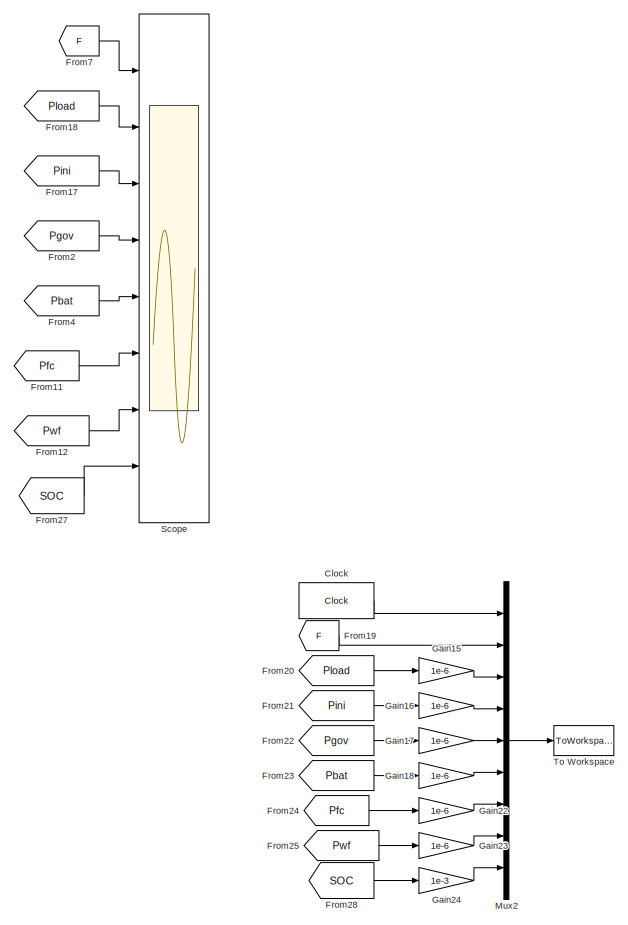
[diagram: root canvas - part 1/3, middle right region]
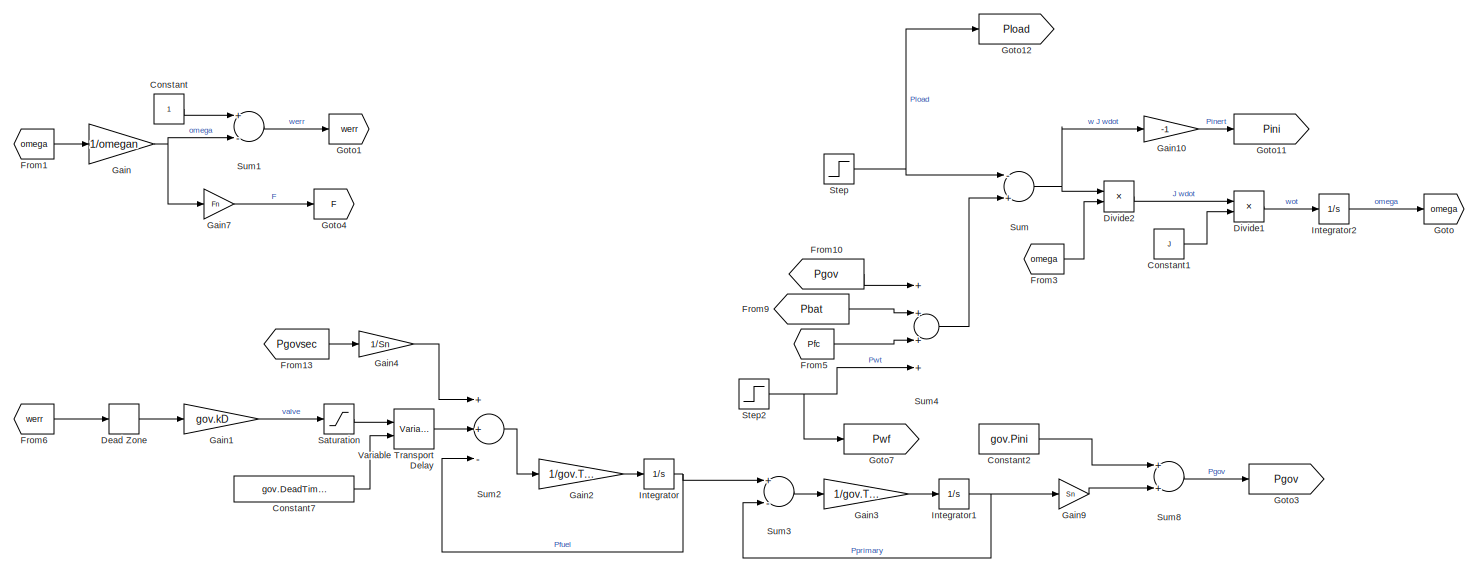
[diagram: root canvas - part 2/3, top left region]
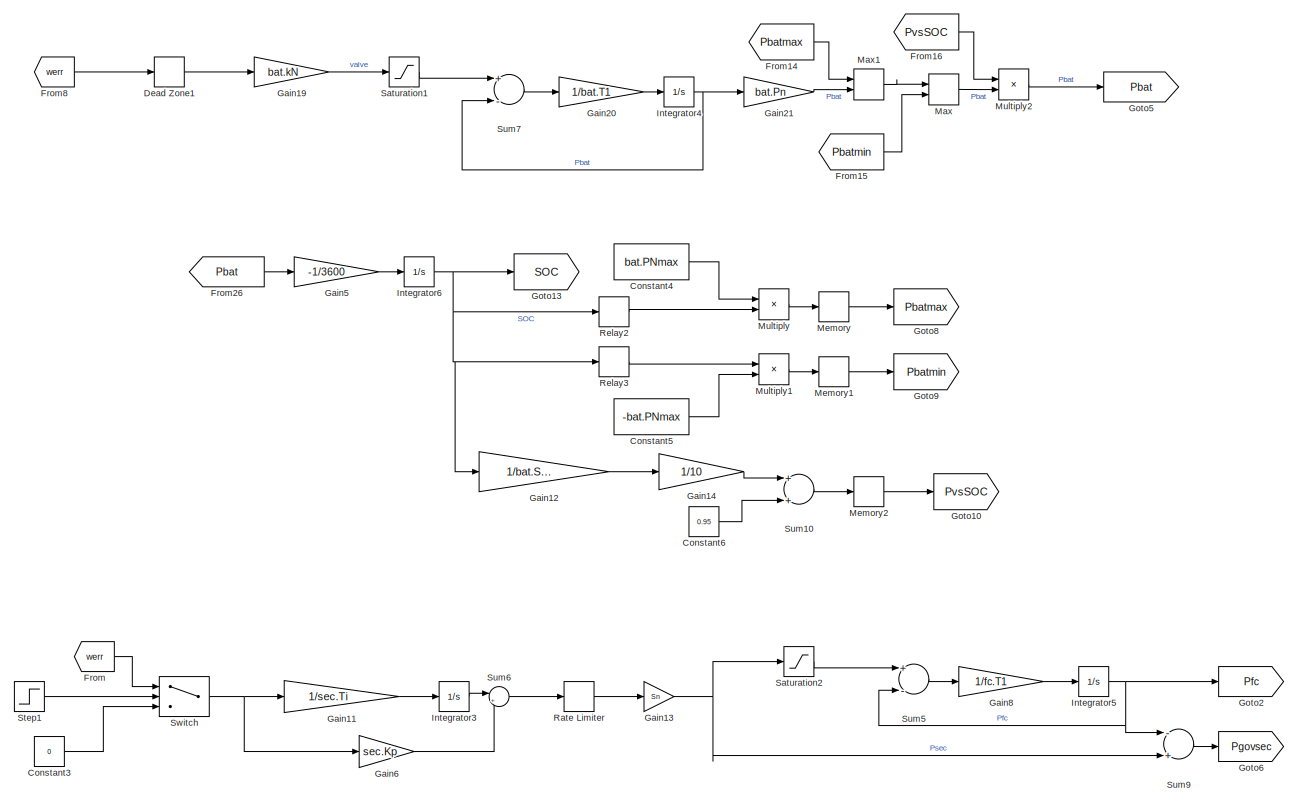
[diagram: root canvas - part 3/3, bottom left region]
MODEL slx_ca74fca343f3
KIND model
CONFIG AbsTol = auto
CONFIG EnableMultiTasking = off
CONFIG FixedStep = Ts
CONFIG MaxStep = 0.1
CONFIG MinStep = auto
CONFIG RelTol = 1e-3
CONFIG SampleTimeConstraint = Unconstrained
CONFIG Solver = FixedStepAuto
CONFIG SolverName = FixedStepAuto
CONFIG StartTime = 0.0
CONFIG StopTime = Ttot
BLOCK [Clock] Clock
  DisplayTime = on
BLOCK [Constant] Constant
BLOCK [Constant] Constant1
  Value = J
BLOCK [Constant] Constant2
  Value = gov.Pini
BLOCK [Constant] Constant3
  Value = 0
BLOCK [Constant] Constant4
  Value = bat.PNmax
BLOCK [Constant] Constant5
  Value = -bat.PNmax
BLOCK [Constant] Constant6
  Value = 0.95
BLOCK [Constant] Constant7
  Value = gov.DeadTimeValve
BLOCK [DeadZone] Dead Zone
  LowerValue = -gov.fD
  UpperValue = gov.fD
BLOCK [DeadZone] Dead Zone1
  LowerValue = -bat.fN
  UpperValue = bat.fN
BLOCK [Product] Divide1
  InputSameDT = off
  Inputs = */
  OutDataTypeStr = Inherit: Inherit via internal rule
  Ports = [2, 1]
  RndMeth = Floor
  SaturateOnIntegerOverflow = off
BLOCK [Product] Divide2
  InputSameDT = off
  Inputs = */
  OutDataTypeStr = Inherit: Inherit via internal rule
  Ports = [2, 1]
  RndMeth = Floor
  SaturateOnIntegerOverflow = off
BLOCK [From] From
  GotoTag = werr
BLOCK [From] From1
  GotoTag = omega
BLOCK [From] From10
  GotoTag = Pgov
BLOCK [From] From11
  GotoTag = Pfc
BLOCK [From] From12
  GotoTag = Pwf
BLOCK [From] From13
  GotoTag = Pgovsec
BLOCK [From] From14
  GotoTag = Pbatmax
BLOCK [From] From15
  GotoTag = Pbatmin
BLOCK [From] From16
  GotoTag = PvsSOC
BLOCK [From] From17
  GotoTag = Pini
BLOCK [From] From18
  GotoTag = Pload
BLOCK [From] From19
  GotoTag = F
BLOCK [From] From2
  GotoTag = Pgov
BLOCK [From] From20
  GotoTag = Pload
BLOCK [From] From21
  GotoTag = Pini
BLOCK [From] From22
  GotoTag = Pgov
BLOCK [From] From23
  GotoTag = Pbat
BLOCK [From] From24
  GotoTag = Pfc
BLOCK [From] From25
  GotoTag = Pwf
BLOCK [From] From26
  GotoTag = Pbat
BLOCK [From] From27
  GotoTag = SOC
BLOCK [From] From28
  GotoTag = SOC
BLOCK [From] From3
  GotoTag = omega
BLOCK [From] From4
  GotoTag = Pbat
BLOCK [From] From5
  GotoTag = Pfc
BLOCK [From] From6
  GotoTag = werr
BLOCK [From] From7
  GotoTag = F
BLOCK [From] From8
  GotoTag = werr
BLOCK [From] From9
  GotoTag = Pbat
BLOCK [Gain] Gain
  Gain = 1/omegan
  OutDataTypeStr = Inherit: Inherit via internal rule
  ParamDataTypeStr = Inherit: Inherit via internal rule
  SaturateOnIntegerOverflow = off
BLOCK [Gain] Gain1
  Gain = gov.kD
  OutDataTypeStr = Inherit: Inherit via internal rule
  ParamDataTypeStr = Inherit: Inherit via internal rule
  SaturateOnIntegerOverflow = off
BLOCK [Gain] Gain10
  Gain = -1
  OutDataTypeStr = Inherit: Inherit via internal rule
  ParamDataTypeStr = Inherit: Inherit via internal rule
  SaturateOnIntegerOverflow = off
BLOCK [Gain] Gain11
  Gain = 1/sec.Ti
  OutDataTypeStr = Inherit: Inherit via internal rule
  ParamDataTypeStr = Inherit: Inherit via internal rule
  SaturateOnIntegerOverflow = off
BLOCK [Gain] Gain12
  Gain = 1/bat.SOCmaxcut
  OutDataTypeStr = Inherit: Inherit via internal rule
  ParamDataTypeStr = Inherit: Inherit via internal rule
  SaturateOnIntegerOverflow = off
BLOCK [Gain] Gain13
  Gain = Sn
  OutDataTypeStr = Inherit: Inherit via internal rule
  ParamDataTypeStr = Inherit: Inherit via internal rule
  SaturateOnIntegerOverflow = off
BLOCK [Gain] Gain14
  Gain = 1/10
  OutDataTypeStr = Inherit: Inherit via internal rule
  ParamDataTypeStr = Inherit: Inherit via internal rule
  SaturateOnIntegerOverflow = off
BLOCK [Gain] Gain15
  Gain = 1e-6
  OutDataTypeStr = Inherit: Inherit via internal rule
  ParamDataTypeStr = Inherit: Inherit via internal rule
  SaturateOnIntegerOverflow = off
BLOCK [Gain] Gain16
  Gain = 1e-6
  OutDataTypeStr = Inherit: Inherit via internal rule
  ParamDataTypeStr = Inherit: Inherit via internal rule
  SaturateOnIntegerOverflow = off
BLOCK [Gain] Gain17
  Gain = 1e-6
  OutDataTypeStr = Inherit: Inherit via internal rule
  ParamDataTypeStr = Inherit: Inherit via internal rule
  SaturateOnIntegerOverflow = off
BLOCK [Gain] Gain18
  Gain = 1e-6
  OutDataTypeStr = Inherit: Inherit via internal rule
  ParamDataTypeStr = Inherit: Inherit via internal rule
  SaturateOnIntegerOverflow = off
BLOCK [Gain] Gain19
  Gain = bat.kN
  OutDataTypeStr = Inherit: Inherit via internal rule
  ParamDataTypeStr = Inherit: Inherit via internal rule
  SaturateOnIntegerOverflow = off
BLOCK [Gain] Gain2
  Gain = 1/gov.Tgt1
  OutDataTypeStr = Inherit: Inherit via internal rule
  ParamDataTypeStr = Inherit: Inherit via internal rule
  SaturateOnIntegerOverflow = off
BLOCK [Gain] Gain20
  Gain = 1/bat.T1
  OutDataTypeStr = Inherit: Inherit via internal rule
  ParamDataTypeStr = Inherit: Inherit via internal rule
  SaturateOnIntegerOverflow = off
BLOCK [Gain] Gain21
  Gain = bat.Pn
  OutDataTypeStr = Inherit: Inherit via internal rule
  ParamDataTypeStr = Inherit: Inherit via internal rule
  SaturateOnIntegerOverflow = off
BLOCK [Gain] Gain22
  Gain = 1e-6
  OutDataTypeStr = Inherit: Inherit via internal rule
  ParamDataTypeStr = Inherit: Inherit via internal rule
  SaturateOnIntegerOverflow = off
BLOCK [Gain] Gain23
  Gain = 1e-6
  OutDataTypeStr = Inherit: Inherit via internal rule
  ParamDataTypeStr = Inherit: Inherit via internal rule
  SaturateOnIntegerOverflow = off
BLOCK [Gain] Gain24
  Gain = 1e-3
  OutDataTypeStr = Inherit: Inherit via internal rule
  ParamDataTypeStr = Inherit: Inherit via internal rule
  SaturateOnIntegerOverflow = off
BLOCK [Gain] Gain3
  Gain = 1/gov.Tgt2
  OutDataTypeStr = Inherit: Inherit via internal rule
  ParamDataTypeStr = Inherit: Inherit via internal rule
  SaturateOnIntegerOverflow = off
BLOCK [Gain] Gain4
  Gain = 1/Sn
  OutDataTypeStr = Inherit: Inherit via internal rule
  ParamDataTypeStr = Inherit: Inherit via internal rule
  SaturateOnIntegerOverflow = off
BLOCK [Gain] Gain5
  Gain = -1/3600
  OutDataTypeStr = Inherit: Inherit via internal rule
  ParamDataTypeStr = Inherit: Inherit via internal rule
  SaturateOnIntegerOverflow = off
BLOCK [Gain] Gain6
  Gain = sec.Kp
  OutDataTypeStr = Inherit: Inherit via internal rule
  ParamDataTypeStr = Inherit: Inherit via internal rule
  SaturateOnIntegerOverflow = off
BLOCK [Gain] Gain7
  Gain = Fn
  OutDataTypeStr = Inherit: Inherit via internal rule
  ParamDataTypeStr = Inherit: Inherit via internal rule
  SaturateOnIntegerOverflow = off
BLOCK [Gain] Gain8
  Gain = 1/fc.T1
  OutDataTypeStr = Inherit: Inherit via internal rule
  ParamDataTypeStr = Inherit: Inherit via internal rule
  SaturateOnIntegerOverflow = off
BLOCK [Gain] Gain9
  Gain = Sn
  OutDataTypeStr = Inherit: Inherit via internal rule
  ParamDataTypeStr = Inherit: Inherit via internal rule
  SaturateOnIntegerOverflow = off
BLOCK [Goto] Goto
  GotoTag = omega
BLOCK [Goto] Goto1
  GotoTag = werr
BLOCK [Goto] Goto10
  GotoTag = PvsSOC
BLOCK [Goto] Goto11
  GotoTag = Pini
BLOCK [Goto] Goto12
  GotoTag = Pload
BLOCK [Goto] Goto13
  GotoTag = SOC
BLOCK [Goto] Goto2
  GotoTag = Pfc
BLOCK [Goto] Goto3
  GotoTag = Pgov
BLOCK [Goto] Goto4
  GotoTag = F
BLOCK [Goto] Goto5
  GotoTag = Pbat
BLOCK [Goto] Goto6
  GotoTag = Pgovsec
BLOCK [Goto] Goto7
  GotoTag = Pwf
BLOCK [Goto] Goto8
  GotoTag = Pbatmax
BLOCK [Goto] Goto9
  GotoTag = Pbatmin
BLOCK [Integrator] Integrator
  Ports = [1, 1]
BLOCK [Integrator] Integrator1
  Ports = [1, 1]
BLOCK [Integrator] Integrator2
  InitialCondition = omegan
  Ports = [1, 1]
BLOCK [Integrator] Integrator3
  Ports = [1, 1]
BLOCK [Integrator] Integrator4
  Ports = [1, 1]
BLOCK [Integrator] Integrator5
  Ports = [1, 1]
BLOCK [Integrator] Integrator6
  InitialCondition = bat.SOCini
  Ports = [1, 1]
BLOCK [MinMax] Max
  Function = max
  InputSameDT = off
  Inputs = 2
  Ports = [2, 1]
  SaturateOnIntegerOverflow = off
BLOCK [MinMax] Max1
  InputSameDT = off
  Inputs = 2
  Ports = [2, 1]
  SaturateOnIntegerOverflow = off
BLOCK [Memory] Memory
  InitialCondition = bat.PNmax
BLOCK [Memory] Memory1
  InitialCondition = -bat.PNmax
BLOCK [Memory] Memory2
  InitialCondition = 0.1*bat.SOCini/bat.SOCmaxcut+0.95
BLOCK [Product] Multiply
  InputSameDT = off
  OutDataTypeStr = Inherit: Inherit via internal rule
  Ports = [2, 1]
  RndMeth = Floor
  SaturateOnIntegerOverflow = off
BLOCK [Product] Multiply1
  InputSameDT = off
  OutDataTypeStr = Inherit: Inherit via internal rule
  Ports = [2, 1]
  RndMeth = Floor
  SaturateOnIntegerOverflow = off
BLOCK [Product] Multiply2
  InputSameDT = off
  OutDataTypeStr = Inherit: Inherit via internal rule
  Ports = [2, 1]
  RndMeth = Floor
  SaturateOnIntegerOverflow = off
BLOCK [Mux] Mux2
  DisplayOption = bar
  Inputs = 9
  Ports = [9, 1]
BLOCK [RateLimiter] Rate Limiter
  FallingSlewLimit = -sec.Rate
  RisingSlewLimit = sec.Rate
  SampleTimeMode = inherited
BLOCK [Relay] Relay2
  InputProcessing = Elements as channels (sample based)
  OffSwitchValue = bat.SOCmincut
  OnSwitchValue = bat.SOCminrest
BLOCK [Relay] Relay3
  InputProcessing = Elements as channels (sample based)
  OffOutputValue = 1
  OffSwitchValue = bat.SOCmaxrest
  OnOutputValue = 0
  OnSwitchValue = bat.SOCmaxcut
BLOCK [Saturate] Saturation
  InputPortMap = u0
  LowerLimit = -gov.pDmax
  Ports = [1, 1]
  UpperLimit = gov.pDmax
BLOCK [Saturate] Saturation1
  InputPortMap = u0
  LowerLimit = -bat.pNmax
  Ports = [1, 1]
  UpperLimit = bat.pNmax
BLOCK [Saturate] Saturation2
  InputPortMap = u0
  LowerLimit = 0
  Ports = [1, 1]
  UpperLimit = fc.Pmax
BLOCK [Scope] Scope
  Floating = off
  NumInputPorts = 8
  Ports = [8]
  ScopeSpecificationString = Simulink.scopes.TimeScopeBlockCfg('CurrentConfiguration', extmgr.ConfigurationSet(extmgr.Configuration('Core','General UI',true),extmgr.Configuration('Core','Source UI',true),extmgr.Configuration('Sources','WiredSimulink',true),extmgr.Configuration('Visuals','Time Domain',true,'SerializedDisplays',{struct('MinYLimReal','48.48813','MaxYLimReal','50.24257','YLabelReal','','MinYLimMag','48.48813','Ma...<+6731ch>
BLOCK [Step] Step
  After = load.Pini + load.Pstep
  Before = load.Pini
  SampleTime = 0
  Time = load.StepTime
BLOCK [Step] Step1
  SampleTime = 0
  Time = sec.T_on_delay
BLOCK [Step] Step2
  After = wf.Pini + wf.Pstep
  Before = wf.Pini
  SampleTime = 0
  Time = wf.StepTime
BLOCK [Sum] Sum
  InputSameDT = off
  Inputs = -+
  OutDataTypeStr = Inherit: Inherit via internal rule
  Ports = [2, 1]
  SaturateOnIntegerOverflow = off
BLOCK [Sum] Sum1
  InputSameDT = off
  Inputs = +-
  OutDataTypeStr = Inherit: Inherit via internal rule
  Ports = [2, 1]
  SaturateOnIntegerOverflow = off
BLOCK [Sum] Sum10
  InputSameDT = off
  OutDataTypeStr = Inherit: Inherit via internal rule
  Ports = [2, 1]
  SaturateOnIntegerOverflow = off
BLOCK [Sum] Sum2
  InputSameDT = off
  Inputs = ++-
  OutDataTypeStr = Inherit: Inherit via internal rule
  Ports = [3, 1]
  SaturateOnIntegerOverflow = off
BLOCK [Sum] Sum3
  InputSameDT = off
  Inputs = +-
  OutDataTypeStr = Inherit: Inherit via internal rule
  Ports = [2, 1]
  SaturateOnIntegerOverflow = off
BLOCK [Sum] Sum4
  InputSameDT = off
  Inputs = ++++
  OutDataTypeStr = Inherit: Inherit via internal rule
  Ports = [4, 1]
  SaturateOnIntegerOverflow = off
BLOCK [Sum] Sum5
  InputSameDT = off
  Inputs = +-
  OutDataTypeStr = Inherit: Inherit via internal rule
  Ports = [2, 1]
  SaturateOnIntegerOverflow = off
BLOCK [Sum] Sum6
  IconShape = round
  InputSameDT = off
  Inputs = |++
  OutDataTypeStr = Inherit: Inherit via internal rule
  Ports = [2, 1]
  SaturateOnIntegerOverflow = off
BLOCK [Sum] Sum7
  InputSameDT = off
  Inputs = +-
  OutDataTypeStr = Inherit: Inherit via internal rule
  Ports = [2, 1]
  SaturateOnIntegerOverflow = off
BLOCK [Sum] Sum8
  InputSameDT = off
  OutDataTypeStr = Inherit: Inherit via internal rule
  Ports = [2, 1]
  SaturateOnIntegerOverflow = off
BLOCK [Sum] Sum9
  InputSameDT = off
  Inputs = -+
  OutDataTypeStr = Inherit: Inherit via internal rule
  Ports = [2, 1]
  SaturateOnIntegerOverflow = off
BLOCK [Switch] Switch
  Criteria = u2 > Threshold
  InputSameDT = off
  SaturateOnIntegerOverflow = off
BLOCK [ToWorkspace] To Workspace
  FixptAsFi = on
  MaxDataPoints = inf
  Ports = [1]
  SampleTime = -1
  Save2DSignal = 3-D array (concatenate along third dimension)
  VariableName = rawdata
BLOCK [VariableTransportDelay] Variable Transport Delay
  MaximumDelay = 10
  MaximumPoints = 4096
  Ports = [2, 1]
  VariableDelayType = Variable transport delay
LINE Clock:1 -> Mux2:1
LINE Constant1:1 -> Divide1:2
LINE Constant2:1 -> Sum8:1
LINE Constant3:1 -> Switch:3
LINE Constant4:1 -> Multiply:1
LINE Constant5:1 -> Multiply1:2
LINE Constant6:1 -> Sum10:2
LINE Constant7:1 -> Variable Transport Delay:2
LINE Constant:1 -> Sum1:1
LINE Dead Zone1:1 -> Gain19:1
LINE Dead Zone:1 -> Gain1:1
LINE Divide1:1 -> Integrator2:1
LINE Divide2:1 -> Divide1:1
LINE From10:1 -> Sum4:1
LINE From11:1 -> Scope:6
LINE From12:1 -> Scope:7
LINE From13:1 -> Gain4:1
LINE From14:1 -> Max1:1
LINE From15:1 -> Max:2
LINE From16:1 -> Multiply2:1
LINE From17:1 -> Scope:3
LINE From18:1 -> Scope:2
LINE From19:1 -> Mux2:2
LINE From1:1 -> Gain:1
LINE From20:1 -> Gain15:1
LINE From21:1 -> Gain16:1
LINE From22:1 -> Gain17:1
LINE From23:1 -> Gain18:1
LINE From24:1 -> Gain22:1
LINE From25:1 -> Gain23:1
LINE From26:1 -> Gain5:1
LINE From27:1 -> Scope:8
LINE From28:1 -> Gain24:1
LINE From2:1 -> Scope:4
LINE From3:1 -> Divide2:2
LINE From4:1 -> Scope:5
LINE From5:1 -> Sum4:3
LINE From6:1 -> Dead Zone:1
LINE From7:1 -> Scope:1
LINE From8:1 -> Dead Zone1:1
LINE From9:1 -> Sum4:2
LINE From:1 -> Switch:1
LINE Gain10:1 -> Goto11:1
LINE Gain11:1 -> Integrator3:1
LINE Gain12:1 -> Gain14:1
NET Gain13:1 -> Saturation2:1, Sum9:2
LINE Gain14:1 -> Sum10:1
LINE Gain15:1 -> Mux2:3
LINE Gain16:1 -> Mux2:4
LINE Gain17:1 -> Mux2:5
LINE Gain18:1 -> Mux2:6
LINE Gain19:1 -> Saturation1:1
LINE Gain1:1 -> Saturation:1
LINE Gain20:1 -> Integrator4:1
LINE Gain21:1 -> Max1:2
LINE Gain22:1 -> Mux2:7
LINE Gain23:1 -> Mux2:8
LINE Gain24:1 -> Mux2:9
LINE Gain2:1 -> Integrator:1
LINE Gain3:1 -> Integrator1:1
LINE Gain4:1 -> Sum2:1
LINE Gain5:1 -> Integrator6:1
LINE Gain6:1 -> Sum6:2
LINE Gain7:1 -> Goto4:1
LINE Gain8:1 -> Integrator5:1
LINE Gain9:1 -> Sum8:2
NET Gain:1 -> Gain7:1, Sum1:2
NET Integrator1:1 -> Gain9:1, Sum3:2
LINE Integrator2:1 -> Goto:1
LINE Integrator3:1 -> Sum6:1
NET Integrator4:1 -> Gain21:1, Sum7:2
NET Integrator5:1 -> Goto2:1, Sum5:2, Sum9:1
NET Integrator6:1 -> Gain12:1, Goto13:1, Relay2:1, Relay3:1
NET Integrator:1 -> Sum2:3, Sum3:1
LINE Max1:1 -> Max:1
LINE Max:1 -> Multiply2:2
LINE Memory1:1 -> Goto9:1
LINE Memory2:1 -> Goto10:1
LINE Memory:1 -> Goto8:1
LINE Multiply1:1 -> Memory1:1
LINE Multiply2:1 -> Goto5:1
LINE Multiply:1 -> Memory:1
LINE Mux2:1 -> To Workspace:1
LINE Rate Limiter:1 -> Gain13:1
LINE Relay2:1 -> Multiply:2
LINE Relay3:1 -> Multiply1:1
LINE Saturation1:1 -> Sum7:1
LINE Saturation2:1 -> Sum5:1
LINE Saturation:1 -> Variable Transport Delay:1
LINE Step1:1 -> Switch:2
NET Step2:1 -> Goto7:1, Sum4:4
NET Step:1 -> Goto12:1, Sum:1
LINE Sum10:1 -> Memory2:1
LINE Sum1:1 -> Goto1:1
LINE Sum2:1 -> Gain2:1
LINE Sum3:1 -> Gain3:1
LINE Sum4:1 -> Sum:2
LINE Sum5:1 -> Gain8:1
LINE Sum6:1 -> Rate Limiter:1
LINE Sum7:1 -> Gain20:1
LINE Sum8:1 -> Goto3:1
LINE Sum9:1 -> Goto6:1
NET Sum:1 -> Divide2:1, Gain10:1
NET Switch:1 -> Gain11:1, Gain6:1
LINE Variable Transport Delay:1 -> Sum2:2
note: NET lines group one-source signal fan-out (src -> all destinations, sorted); 1:1 wires keep LINE
